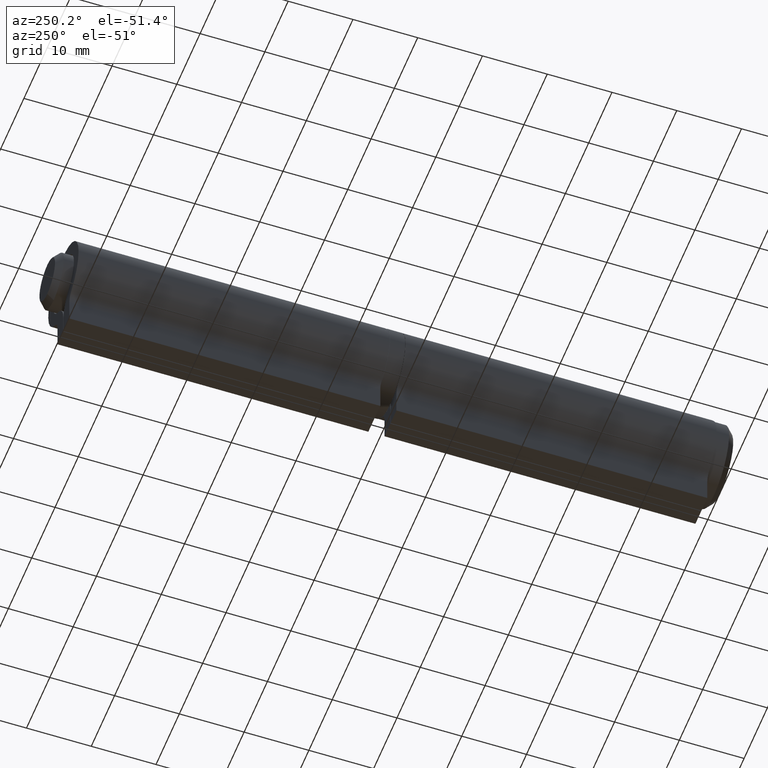
[diagram: clean part render]
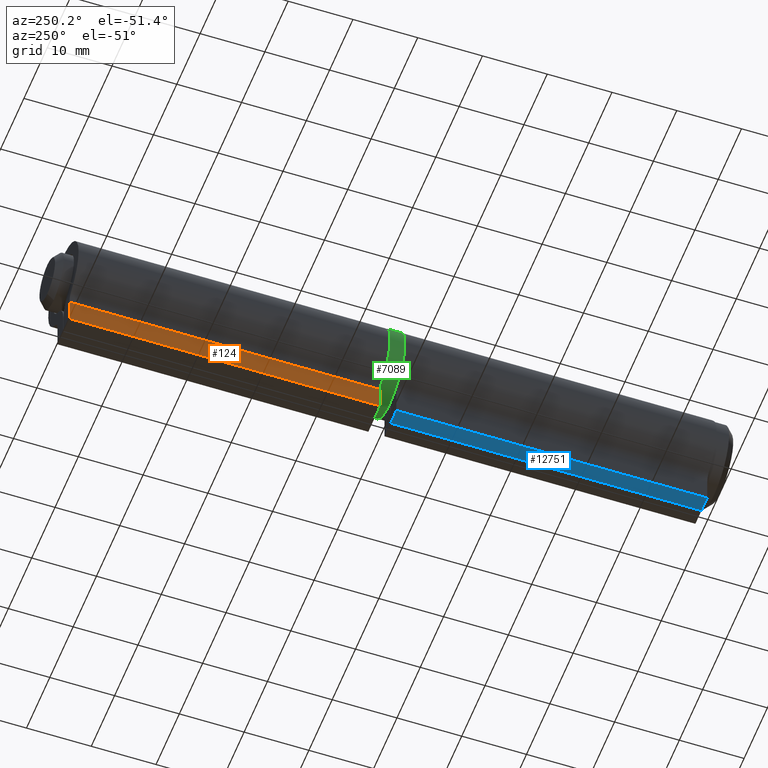
[diagram: same view with three faces highlighted in distinct colors, each labeled with its STEP entity id]
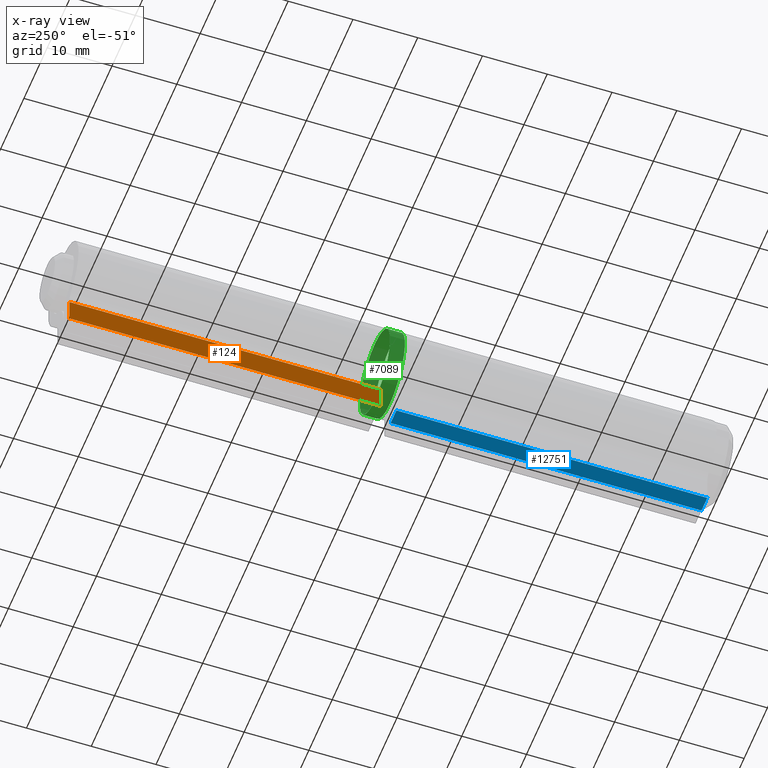
[diagram: x-ray of the same camera — body ghosted, the three highlighted faces saturated]
A machine part, auxiliary view with three faces highlighted in distinct colors.
The next image is the same camera in x-ray (body ghosted, the three faces saturated) — at least one of them is partly hidden behind the body in this view.
Their STEP definitions:

[orange] entity #124 — the highlighted planar face has unit normal (1, 0, 0).
#124 = ADVANCED_FACE ( 'NONE', ( #9591 ), #2471, .F. ) ;
#140 = EDGE_CURVE ( 'NONE', #7806, #4399, #7660, .T. ) ;
#224 = EDGE_CURVE ( 'NONE', #7806, #351, #4567, .T. ) ;
#351 = VERTEX_POINT ( 'NONE', #402 ) ;
#402 = CARTESIAN_POINT ( 'NONE',  ( -2.550000000000000266, 23.99999999999999289, -7.179658766264591208 ) ) ;
#887 = CARTESIAN_POINT ( 'NONE',  ( -2.550000000000000266, -24.00000000000000000, -11.00000000000000355 ) ) ;
#1508 = VERTEX_POINT ( 'NONE', #5807 ) ;
#1661 = EDGE_CURVE ( 'NONE', #4399, #1508, #9923, .T. ) ;
#2335 = LINE ( 'NONE', #13916, #8872 ) ;
#2471 = PLANE ( 'NONE',  #8869 ) ;
#3569 = EDGE_CURVE ( 'NONE', #351, #1508, #2335, .T. ) ;
#3672 = CARTESIAN_POINT ( 'NONE',  ( -2.550000000000000266, 23.99999999999999289, -11.00000000000000355 ) ) ;
#4222 = DIRECTION ( 'NONE',  ( -0.000000000000000000, -1.000000000000000000, -0.000000000000000000 ) ) ;
#4399 = VERTEX_POINT ( 'NONE', #13653 ) ;
#4567 = LINE ( 'NONE', #3672, #11624 ) ;
#5158 = ORIENTED_EDGE ( 'NONE', *, *, #140, .T. ) ;
#5253 = DIRECTION ( 'NONE',  ( 0.000000000000000000, 0.000000000000000000, -1.000000000000000000 ) ) ;
#5354 = DIRECTION ( 'NONE',  ( 1.000000000000000000, 0.000000000000000000, 0.000000000000000000 ) ) ;
#5807 = CARTESIAN_POINT ( 'NONE',  ( -2.550000000000000266, -24.00000000000000000, -7.179658766264591208 ) ) ;
#6296 = CARTESIAN_POINT ( 'NONE',  ( -2.550000000000000266, 23.99999999999999289, -11.00000000000000355 ) ) ;
#7340 = ORIENTED_EDGE ( 'NONE', *, *, #224, .F. ) ;
#7660 = LINE ( 'NONE', #9853, #9238 ) ;
#7806 = VERTEX_POINT ( 'NONE', #6296 ) ;
#8311 = CARTESIAN_POINT ( 'NONE',  ( -2.550000000000000266, 23.99999999999999289, -11.00000000000000355 ) ) ;
#8869 = AXIS2_PLACEMENT_3D ( 'NONE', #8311, #5354, #5253 ) ;
#8872 = VECTOR ( 'NONE', #4222, 1000.000000000000000 ) ;
#8885 = VECTOR ( 'NONE', #10810, 1000.000000000000000 ) ;
#9238 = VECTOR ( 'NONE', #12403, 1000.000000000000000 ) ;
#9591 = FACE_OUTER_BOUND ( 'NONE', #12871, .T. ) ;
#9853 = CARTESIAN_POINT ( 'NONE',  ( -2.550000000000000266, 23.99999999999999289, -11.00000000000000355 ) ) ;
#9923 = LINE ( 'NONE', #887, #8885 ) ;
#10810 = DIRECTION ( 'NONE',  ( 0.000000000000000000, 0.000000000000000000, 1.000000000000000000 ) ) ;
#10871 = ORIENTED_EDGE ( 'NONE', *, *, #3569, .F. ) ;
#11624 = VECTOR ( 'NONE', #12488, 1000.000000000000000 ) ;
#12403 = DIRECTION ( 'NONE',  ( -0.000000000000000000, -1.000000000000000000, -0.000000000000000000 ) ) ;
#12488 = DIRECTION ( 'NONE',  ( 0.000000000000000000, 0.000000000000000000, 1.000000000000000000 ) ) ;
#12871 = EDGE_LOOP ( 'NONE', ( #14010, #10871, #7340, #5158 ) ) ;
#13653 = CARTESIAN_POINT ( 'NONE',  ( -2.550000000000000266, -24.00000000000000000, -11.00000000000000355 ) ) ;
#13916 = CARTESIAN_POINT ( 'NONE',  ( -2.550000000000000266, 23.99999999999999289, -7.179658766264591208 ) ) ;
#14010 = ORIENTED_EDGE ( 'NONE', *, *, #1661, .T. ) ;

[blue] entity #12751 — the highlighted planar face has unit normal (0, 0, 1).
#123 = DIRECTION ( 'NONE',  ( -1.000000000000000000, -0.000000000000000000, -0.000000000000000000 ) ) ;
#483 = DIRECTION ( 'NONE',  ( -1.000000000000000000, -0.000000000000000000, -0.000000000000000000 ) ) ;
#659 = ORIENTED_EDGE ( 'NONE', *, *, #8549, .T. ) ;
#794 = DIRECTION ( 'NONE',  ( -0.000000000000000000, -1.000000000000000000, -0.000000000000000000 ) ) ;
#819 = PLANE ( 'NONE',  #11023 ) ;
#1911 = DIRECTION ( 'NONE',  ( 0.000000000000000000, 0.000000000000000000, 1.000000000000000000 ) ) ;
#2062 = EDGE_LOOP ( 'NONE', ( #5466, #13281, #6401, #659 ) ) ;
#3859 = EDGE_CURVE ( 'NONE', #4615, #13174, #8131, .T. ) ;
#3893 = CARTESIAN_POINT ( 'NONE',  ( -2.550000000000000266, 24.00000000000000000, -11.00000000000000355 ) ) ;
#4605 = VECTOR ( 'NONE', #483, 1000.000000000000000 ) ;
#4615 = VERTEX_POINT ( 'NONE', #7542 ) ;
#4909 = CARTESIAN_POINT ( 'NONE',  ( -2.550000000000000266, 24.00000000000000000, -11.00000000000000355 ) ) ;
#4963 = CARTESIAN_POINT ( 'NONE',  ( -0.05000000000000006523, 24.00000000000000000, -11.00000000000000355 ) ) ;
#5334 = CARTESIAN_POINT ( 'NONE',  ( -2.550000000000000266, 24.00000000000000000, -11.00000000000000355 ) ) ;
#5466 = ORIENTED_EDGE ( 'NONE', *, *, #13724, .T. ) ;
#5887 = CARTESIAN_POINT ( 'NONE',  ( -2.550000000000000266, -24.00000000000000000, -11.00000000000000355 ) ) ;
#6001 = DIRECTION ( 'NONE',  ( -0.000000000000000000, -1.000000000000000000, -0.000000000000000000 ) ) ;
#6127 = LINE ( 'NONE', #5887, #4605 ) ;
#6146 = LINE ( 'NONE', #4909, #7547 ) ;
#6387 = VECTOR ( 'NONE', #123, 1000.000000000000000 ) ;
#6401 = ORIENTED_EDGE ( 'NONE', *, *, #3859, .F. ) ;
#7391 = CARTESIAN_POINT ( 'NONE',  ( -2.550000000000000266, 24.00000000000000000, -11.00000000000000355 ) ) ;
#7542 = CARTESIAN_POINT ( 'NONE',  ( -0.05000000000000006523, 24.00000000000000000, -11.00000000000000355 ) ) ;
#7547 = VECTOR ( 'NONE', #6001, 1000.000000000000000 ) ;
#8131 = LINE ( 'NONE', #5334, #6387 ) ;
#8549 = EDGE_CURVE ( 'NONE', #4615, #13952, #10329, .T. ) ;
#9558 = DIRECTION ( 'NONE',  ( 1.000000000000000000, 0.000000000000000000, -0.000000000000000000 ) ) ;
#9777 = CARTESIAN_POINT ( 'NONE',  ( -2.550000000000000266, -24.00000000000000000, -11.00000000000000355 ) ) ;
#10253 = CARTESIAN_POINT ( 'NONE',  ( -0.05000000000000006523, -24.00000000000000000, -11.00000000000000355 ) ) ;
#10329 = LINE ( 'NONE', #4963, #13361 ) ;
#11023 = AXIS2_PLACEMENT_3D ( 'NONE', #7391, #1911, #9558 ) ;
#11275 = VERTEX_POINT ( 'NONE', #9777 ) ;
#12751 = ADVANCED_FACE ( 'NONE', ( #12872 ), #819, .F. ) ;
#12872 = FACE_OUTER_BOUND ( 'NONE', #2062, .T. ) ;
#13174 = VERTEX_POINT ( 'NONE', #3893 ) ;
#13280 = EDGE_CURVE ( 'NONE', #13174, #11275, #6146, .T. ) ;
#13281 = ORIENTED_EDGE ( 'NONE', *, *, #13280, .F. ) ;
#13361 = VECTOR ( 'NONE', #794, 1000.000000000000000 ) ;
#13724 = EDGE_CURVE ( 'NONE', #13952, #11275, #6127, .T. ) ;
#13952 = VERTEX_POINT ( 'NONE', #10253 ) ;

[green] entity #7089 — the highlighted cylindrical surface (bore or boss wall) has radius 6.5 mm, axis along (-0, -1, -0).
#91 = AXIS2_PLACEMENT_3D ( 'NONE', #13001, #2010, #7357 ) ;
#106 = DIRECTION ( 'NONE',  ( 0.000000000000000000, 0.000000000000000000, 1.000000000000000000 ) ) ;
#538 = VERTEX_POINT ( 'NONE', #5057 ) ;
#2010 = DIRECTION ( 'NONE',  ( -0.000000000000000000, -1.000000000000000000, -0.000000000000000000 ) ) ;
#2219 = AXIS2_PLACEMENT_3D ( 'NONE', #9084, #13411, #3711 ) ;
#2896 = ORIENTED_EDGE ( 'NONE', *, *, #6940, .T. ) ;
#3386 = EDGE_CURVE ( 'NONE', #538, #538, #13921, .T. ) ;
#3430 = VERTEX_POINT ( 'NONE', #5245 ) ;
#3625 = FACE_OUTER_BOUND ( 'NONE', #8431, .T. ) ;
#3711 = DIRECTION ( 'NONE',  ( 0.000000000000000000, 0.000000000000000000, 1.000000000000000000 ) ) ;
#4132 = CYLINDRICAL_SURFACE ( 'NONE', #91, 6.500000000000000888 ) ;
#5057 = CARTESIAN_POINT ( 'NONE',  ( 0.000000000000000000, -1.149999999999999911, 6.500000000000000888 ) ) ;
#5245 = CARTESIAN_POINT ( 'NONE',  ( 0.000000000000000000, 1.149999999999999911, 6.500000000000000888 ) ) ;
#5503 = DIRECTION ( 'NONE',  ( -0.000000000000000000, -1.000000000000000000, -0.000000000000000000 ) ) ;
#5622 = AXIS2_PLACEMENT_3D ( 'NONE', #13307, #5503, #106 ) ;
#6940 = EDGE_CURVE ( 'NONE', #3430, #3430, #12713, .T. ) ;
#7050 = ORIENTED_EDGE ( 'NONE', *, *, #3386, .T. ) ;
#7089 = ADVANCED_FACE ( 'NONE', ( #13044, #3625 ), #4132, .T. ) ;
#7357 = DIRECTION ( 'NONE',  ( 0.000000000000000000, 0.000000000000000000, -1.000000000000000000 ) ) ;
#8431 = EDGE_LOOP ( 'NONE', ( #2896 ) ) ;
#9084 = CARTESIAN_POINT ( 'NONE',  ( 0.000000000000000000, -1.149999999999999911, 0.000000000000000000 ) ) ;
#11129 = EDGE_LOOP ( 'NONE', ( #7050 ) ) ;
#12713 = CIRCLE ( 'NONE', #5622, 6.500000000000000888 ) ;
#13001 = CARTESIAN_POINT ( 'NONE',  ( 0.000000000000000000, 1.249999999999999334, 0.000000000000000000 ) ) ;
#13044 = FACE_OUTER_BOUND ( 'NONE', #11129, .T. ) ;
#13307 = CARTESIAN_POINT ( 'NONE',  ( 0.000000000000000000, 1.149999999999999911, 0.000000000000000000 ) ) ;
#13411 = DIRECTION ( 'NONE',  ( 0.000000000000000000, 1.000000000000000000, 0.000000000000000000 ) ) ;
#13921 = CIRCLE ( 'NONE', #2219, 6.500000000000000888 ) ;